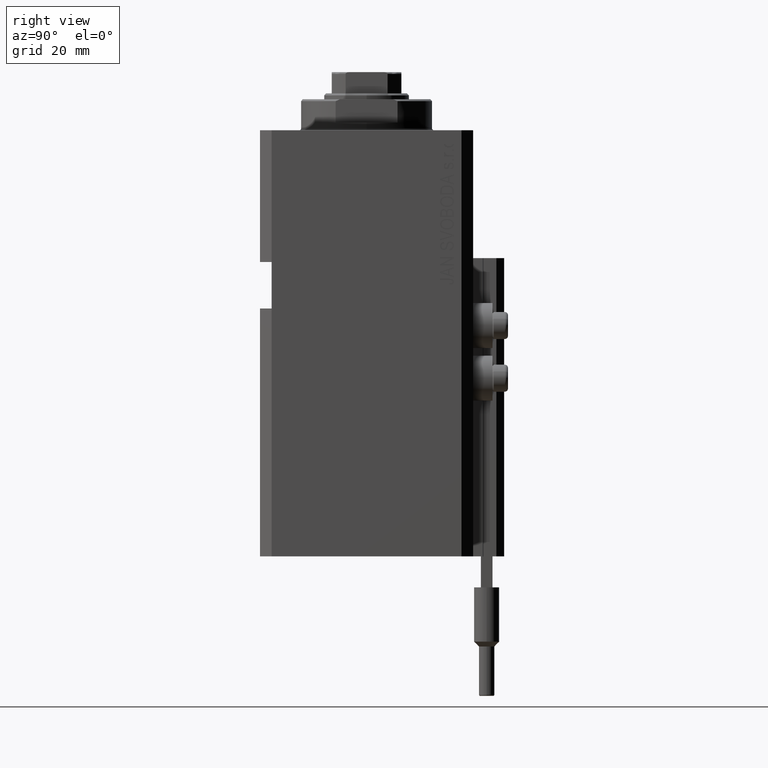
[diagram: clean part render]
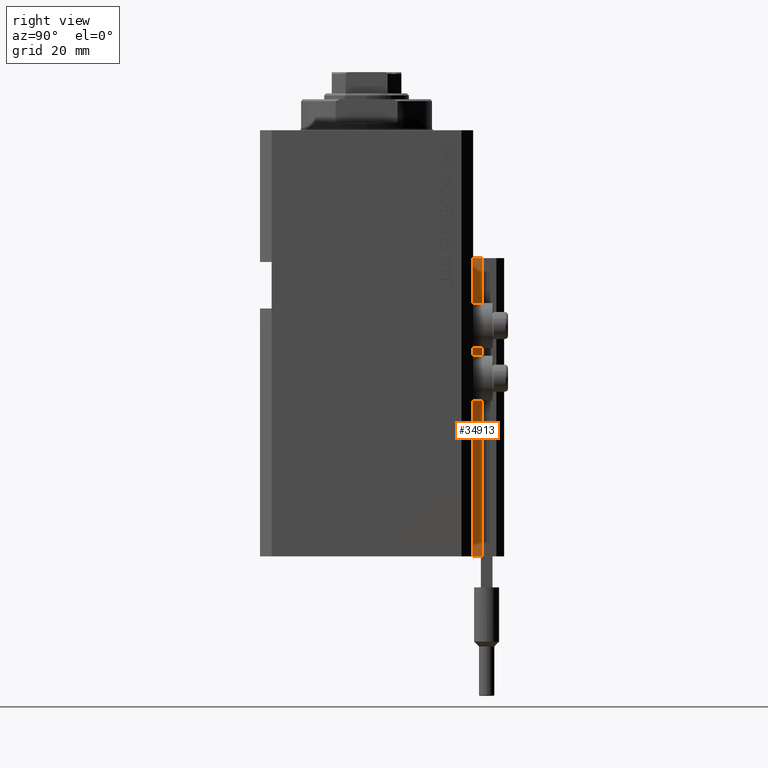
[diagram: same view with one face highlighted and labeled with its STEP entity id]
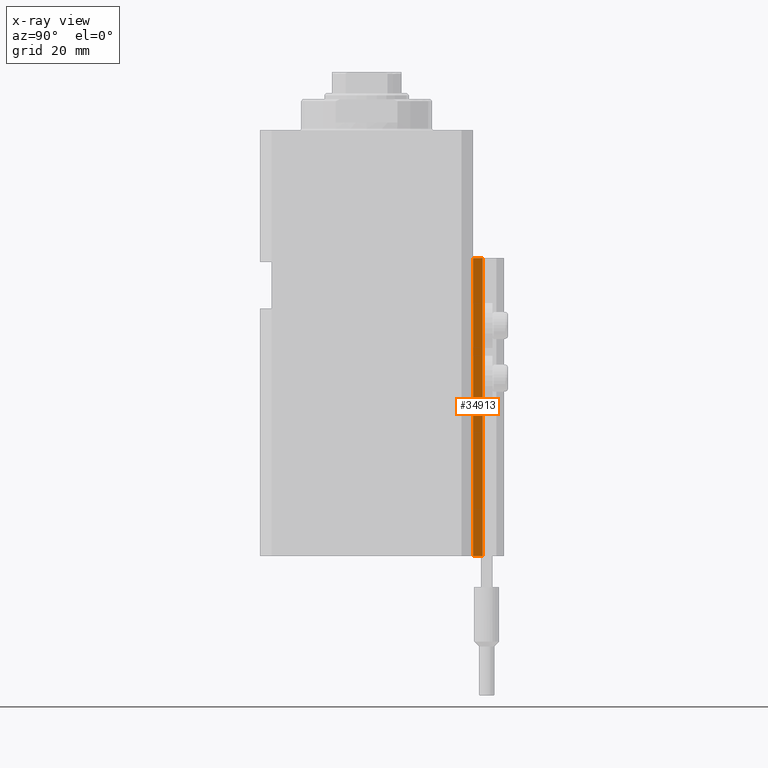
[diagram: x-ray of the same camera — body ghosted, the highlighted face saturated]
A machine part, right view. The second image highlights one B-rep face of the part: STEP entity #34913.
The next image is the same camera in x-ray: the body ghosted, the highlighted face saturated — about 0% of this face is hidden behind the body in this view.
In plain terms, the highlighted planar face has unit normal (1, 0, 0).
Its self-contained STEP definition (entity closure, byte-faithful):
#2181 = CARTESIAN_POINT ( 'NONE',  ( 14.49999999999999645, 27.50000000000000355, -110.0000000000000000 ) ) ;
#2228 = VECTOR ( 'NONE', #20399, 1000.000000000000000 ) ;
#2496 = CARTESIAN_POINT ( 'NONE',  ( 14.49999999999999645, 30.00000000000002487, -110.0000000000000000 ) ) ;
#4531 = CARTESIAN_POINT ( 'NONE',  ( 14.49999999999999645, 27.50000000000000355, -33.00000000000000000 ) ) ;
#4903 = VECTOR ( 'NONE', #35896, 1000.000000000000000 ) ;
#5549 = CARTESIAN_POINT ( 'NONE',  ( 14.49999999999999645, 27.50000000000000355, -110.0000000000000000 ) ) ;
#5975 = FACE_OUTER_BOUND ( 'NONE', #19710, .T. ) ;
#6302 = EDGE_CURVE ( 'NONE', #9932, #17472, #30386, .T. ) ;
#6453 = DIRECTION ( 'NONE',  ( 0.000000000000000000, 0.000000000000000000, -1.000000000000000000 ) ) ;
#8193 = LINE ( 'NONE', #26963, #4903 ) ;
#9444 = AXIS2_PLACEMENT_3D ( 'NONE', #20822, #10116, #6453 ) ;
#9932 = VERTEX_POINT ( 'NONE', #34079 ) ;
#10116 = DIRECTION ( 'NONE',  ( 1.000000000000000000, 0.000000000000000000, 0.000000000000000000 ) ) ;
#13165 = DIRECTION ( 'NONE',  ( 0.000000000000000000, 1.000000000000000000, 0.000000000000000000 ) ) ;
#17472 = VERTEX_POINT ( 'NONE', #36854 ) ;
#17513 = VERTEX_POINT ( 'NONE', #2496 ) ;
#17982 = ORIENTED_EDGE ( 'NONE', *, *, #24888, .F. ) ;
#19710 = EDGE_LOOP ( 'NONE', ( #26767, #17982, #21410, #20400 ) ) ;
#20399 = DIRECTION ( 'NONE',  ( 0.000000000000000000, 0.000000000000000000, 1.000000000000000000 ) ) ;
#20400 = ORIENTED_EDGE ( 'NONE', *, *, #38486, .T. ) ;
#20822 = CARTESIAN_POINT ( 'NONE',  ( 14.49999999999999645, 27.50000000000000355, -110.0000000000000000 ) ) ;
#21410 = ORIENTED_EDGE ( 'NONE', *, *, #45040, .T. ) ;
#21549 = PLANE ( 'NONE',  #9444 ) ;
#24058 = LINE ( 'NONE', #5549, #2228 ) ;
#24888 = EDGE_CURVE ( 'NONE', #39681, #9932, #24058, .T. ) ;
#26767 = ORIENTED_EDGE ( 'NONE', *, *, #6302, .F. ) ;
#26963 = CARTESIAN_POINT ( 'NONE',  ( 14.49999999999999645, 30.00000000000002487, -110.0000000000000000 ) ) ;
#30166 = CARTESIAN_POINT ( 'NONE',  ( 14.49999999999999645, 27.50000000000000355, -110.0000000000000000 ) ) ;
#30271 = VECTOR ( 'NONE', #34528, 1000.000000000000000 ) ;
#30386 = LINE ( 'NONE', #4531, #30271 ) ;
#31694 = LINE ( 'NONE', #2181, #32250 ) ;
#32250 = VECTOR ( 'NONE', #13165, 1000.000000000000000 ) ;
#34079 = CARTESIAN_POINT ( 'NONE',  ( 14.49999999999999645, 27.50000000000000355, -33.00000000000000000 ) ) ;
#34528 = DIRECTION ( 'NONE',  ( 0.000000000000000000, 1.000000000000000000, 0.000000000000000000 ) ) ;
#34913 = ADVANCED_FACE ( 'NONE', ( #5975 ), #21549, .T. ) ;
#35896 = DIRECTION ( 'NONE',  ( 0.000000000000000000, 0.000000000000000000, 1.000000000000000000 ) ) ;
#36854 = CARTESIAN_POINT ( 'NONE',  ( 14.49999999999999645, 30.00000000000002487, -33.00000000000000000 ) ) ;
#38486 = EDGE_CURVE ( 'NONE', #17513, #17472, #8193, .T. ) ;
#39681 = VERTEX_POINT ( 'NONE', #30166 ) ;
#45040 = EDGE_CURVE ( 'NONE', #39681, #17513, #31694, .T. ) ;